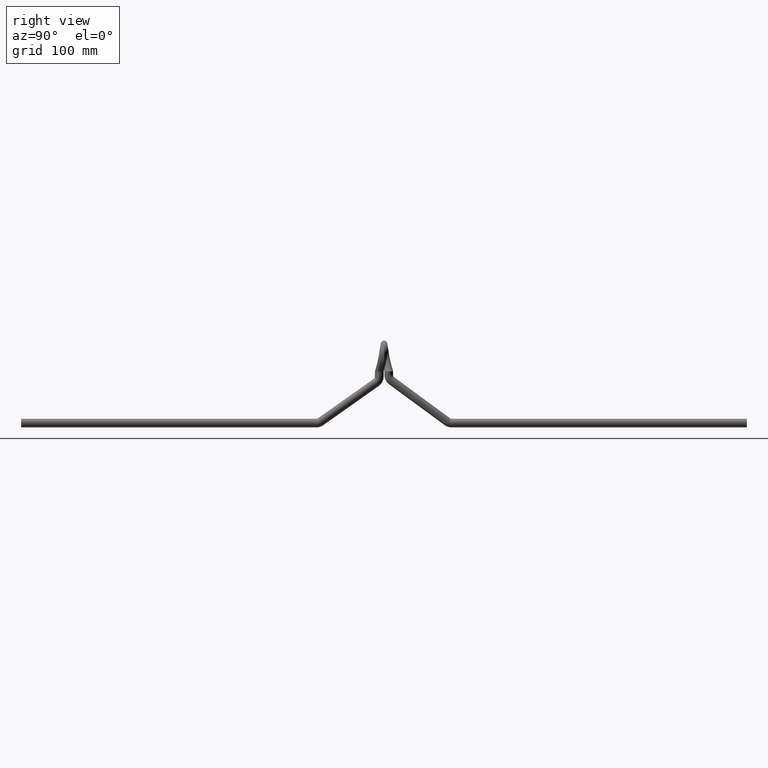
[diagram: clean part render]
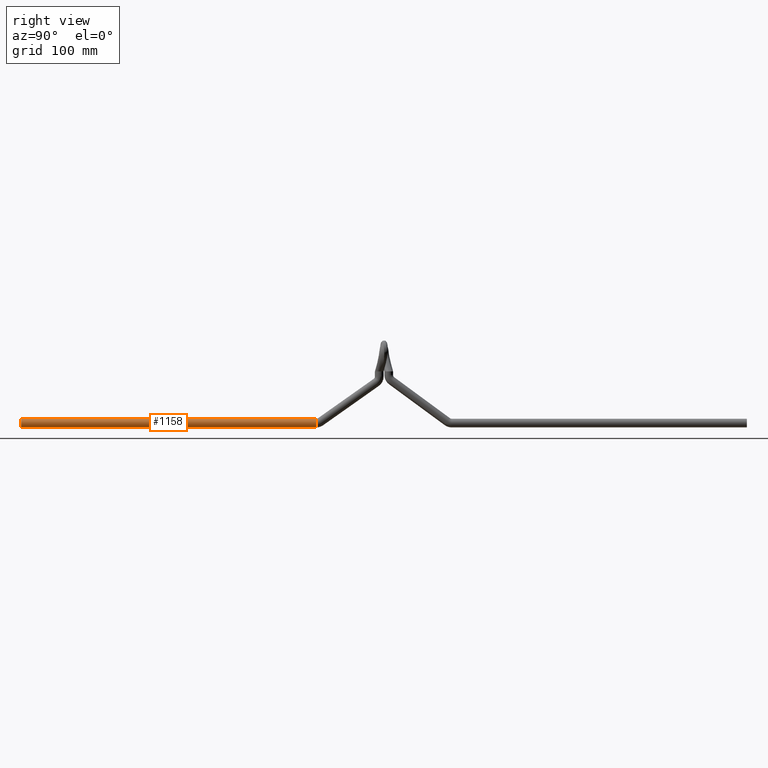
[diagram: same view with one face highlighted and labeled with its STEP entity id]
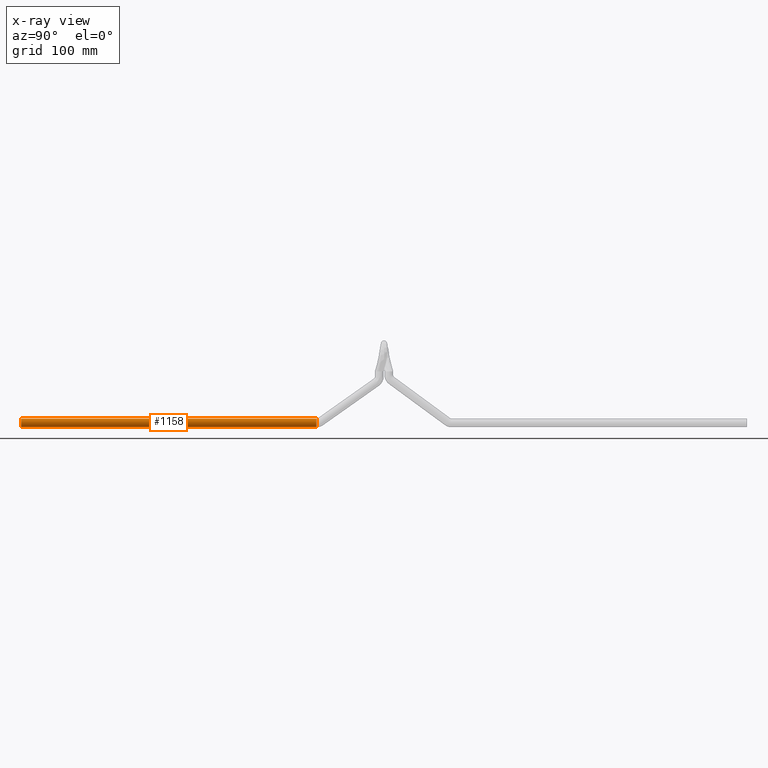
[diagram: x-ray of the same camera — body ghosted, the highlighted face saturated]
A machine part, right view. The second image highlights one B-rep face of the part: STEP entity #1158.
The next image is the same camera in x-ray: the body ghosted, the highlighted face saturated — about 0% of this face is hidden behind the body in this view.
In plain terms, the highlighted cylindrical surface (edge-blend (fillet) strip) has radius 6 mm, axis along (-0, -1, -0).
Its self-contained STEP definition (entity closure, byte-faithful):
#141 = VERTEX_POINT ( 'NONE', #2828 ) ;
#809 = CARTESIAN_POINT ( 'NONE',  ( 0.0000000000000000000, -506.4999999999999400, -77.25000000000007100 ) ) ;
#834 = EDGE_CURVE ( 'NONE', #141, #1189, #3738, .T. ) ;
#840 = DIRECTION ( 'NONE',  ( -0.0000000000000000000, -1.000000000000000000, -0.0000000000000000000 ) ) ;
#846 = DIRECTION ( 'NONE',  ( 0.0000000000000000000, 0.0000000000000000000, -1.000000000000000000 ) ) ;
#1133 = DIRECTION ( 'NONE',  ( -0.0000000000000000000, -1.000000000000000000, -0.0000000000000000000 ) ) ;
#1137 = CARTESIAN_POINT ( 'NONE',  ( 0.0000000000000000000, -99.71999999999997000, -71.25000000000005700 ) ) ;
#1158 = ADVANCED_FACE ( 'NONE', ( #4587 ), #6039, .T. ) ;
#1178 = ORIENTED_EDGE ( 'NONE', *, *, #4923, .T. ) ;
#1189 = VERTEX_POINT ( 'NONE', #809 ) ;
#1372 = AXIS2_PLACEMENT_3D ( 'NONE', #1137, #840, #846 ) ;
#1877 = CARTESIAN_POINT ( 'NONE',  ( 0.0000000000000000000, -506.4999999999999400, -71.25000000000005700 ) ) ;
#2211 = CARTESIAN_POINT ( 'NONE',  ( 7.347880794884125700E-016, -506.4999999999999400, -65.25000000000005700 ) ) ;
#2451 = VERTEX_POINT ( 'NONE', #2211 ) ;
#2504 = DIRECTION ( 'NONE',  ( 0.0000000000000000000, 0.0000000000000000000, 1.000000000000000000 ) ) ;
#2510 = CARTESIAN_POINT ( 'NONE',  ( 0.0000000000000000000, -99.71999999999997000, -77.25000000000007100 ) ) ;
#2532 = DIRECTION ( 'NONE',  ( -0.0000000000000000000, -1.000000000000000000, -0.0000000000000000000 ) ) ;
#2596 = LINE ( 'NONE', #4243, #5688 ) ;
#2828 = CARTESIAN_POINT ( 'NONE',  ( 0.0000000000000000000, -99.71999999999997000, -77.25000000000007100 ) ) ;
#2834 = CARTESIAN_POINT ( 'NONE',  ( 0.0000000000000000000, -99.71999999999997000, -71.25000000000005700 ) ) ;
#3469 = DIRECTION ( 'NONE',  ( 0.0000000000000000000, 0.0000000000000000000, 1.000000000000000000 ) ) ;
#3569 = AXIS2_PLACEMENT_3D ( 'NONE', #1877, #6199, #2504 ) ;
#3631 = ORIENTED_EDGE ( 'NONE', *, *, #834, .F. ) ;
#3738 = LINE ( 'NONE', #2510, #5566 ) ;
#3867 = EDGE_CURVE ( 'NONE', #6446, #2451, #2596, .T. ) ;
#4202 = ORIENTED_EDGE ( 'NONE', *, *, #3867, .T. ) ;
#4231 = CIRCLE ( 'NONE', #4763, 6.000000000000005300 ) ;
#4243 = CARTESIAN_POINT ( 'NONE',  ( 7.347880794884125700E-016, -99.71999999999997000, -65.25000000000005700 ) ) ;
#4488 = EDGE_LOOP ( 'NONE', ( #7169, #4202, #1178, #3631 ) ) ;
#4587 = FACE_OUTER_BOUND ( 'NONE', #4488, .T. ) ;
#4763 = AXIS2_PLACEMENT_3D ( 'NONE', #2834, #7055, #3469 ) ;
#4923 = EDGE_CURVE ( 'NONE', #2451, #1189, #7365, .T. ) ;
#5566 = VECTOR ( 'NONE', #2532, 1000.000000000000000 ) ;
#5688 = VECTOR ( 'NONE', #1133, 1000.000000000000000 ) ;
#5729 = CARTESIAN_POINT ( 'NONE',  ( 7.347880794884125700E-016, -99.71999999999997000, -65.25000000000005700 ) ) ;
#6039 = CYLINDRICAL_SURFACE ( 'NONE', #1372, 6.000000000000005300 ) ;
#6199 = DIRECTION ( 'NONE',  ( 0.0000000000000000000, 1.000000000000000000, 0.0000000000000000000 ) ) ;
#6446 = VERTEX_POINT ( 'NONE', #5729 ) ;
#6717 = EDGE_CURVE ( 'NONE', #6446, #141, #4231, .T. ) ;
#7055 = DIRECTION ( 'NONE',  ( 0.0000000000000000000, 1.000000000000000000, 0.0000000000000000000 ) ) ;
#7169 = ORIENTED_EDGE ( 'NONE', *, *, #6717, .F. ) ;
#7365 = CIRCLE ( 'NONE', #3569, 6.000000000000005300 ) ;